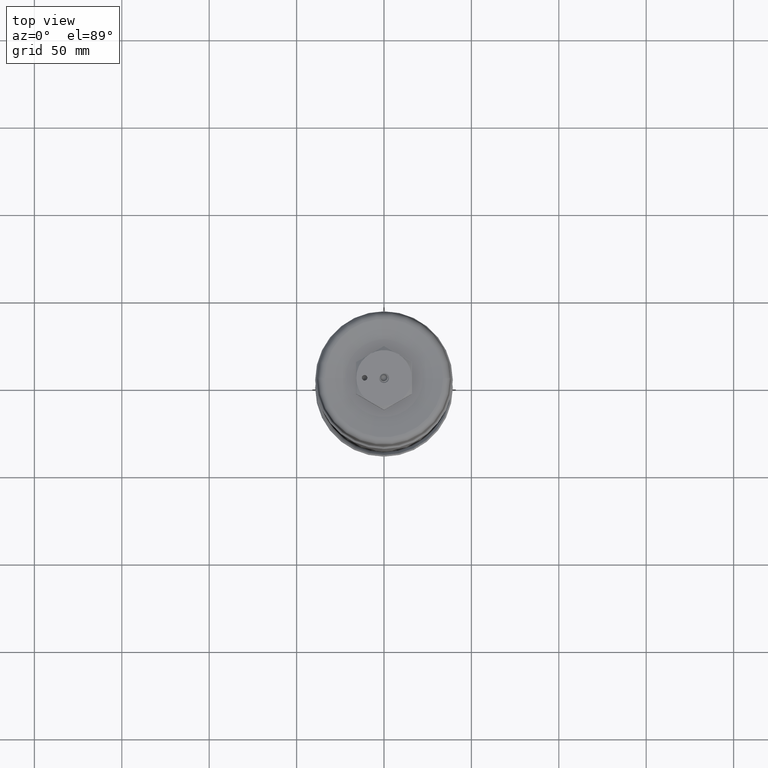
[diagram: clean part render]
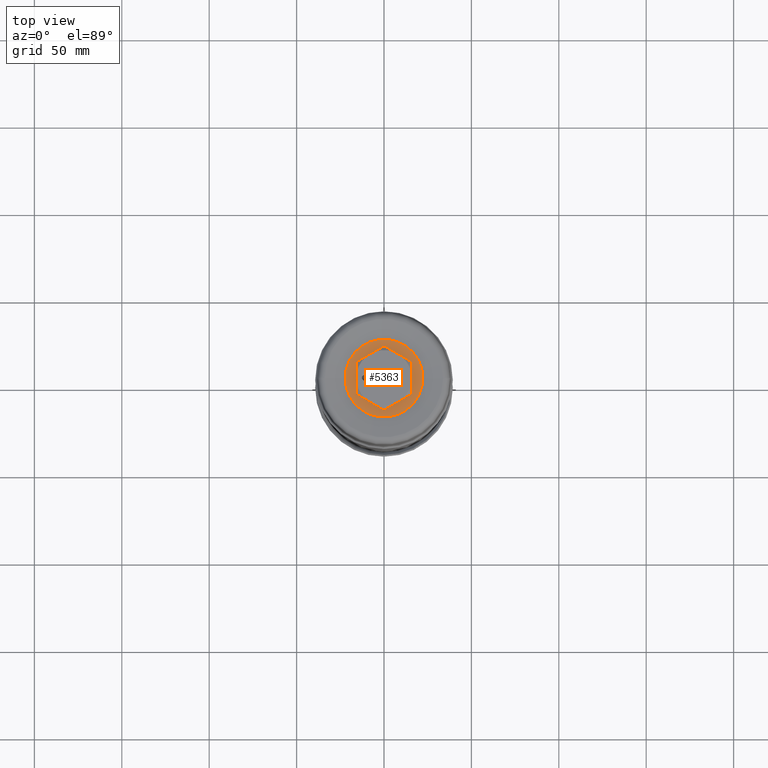
[diagram: same view with one face highlighted and labeled with its STEP entity id]
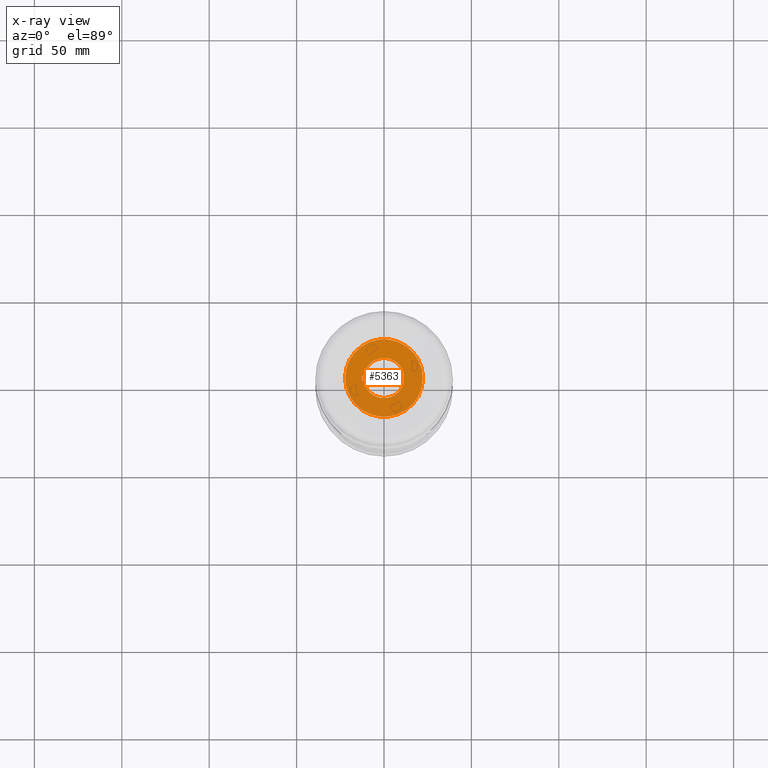
[diagram: x-ray of the same camera — body ghosted, the highlighted face saturated]
A machine part, top view. The second image highlights one B-rep face of the part: STEP entity #5363.
The next image is the same camera in x-ray: the body ghosted, the highlighted face saturated — about 0% of this face is hidden behind the body in this view.
In plain terms, the highlighted planar face has unit normal (0, -0, -1).
Its self-contained STEP definition (entity closure, byte-faithful):
#474 = ORIENTED_EDGE ( 'NONE', *, *, #10587, .T. ) ;
#1390 = EDGE_CURVE ( 'NONE', #4134, #18209, #12932, .T. ) ;
#1484 = CARTESIAN_POINT ( 'NONE',  ( 0.8750000000000268700, -4.857225732735862300E-017, 0.04150000000000377700 ) ) ;
#1608 = VERTEX_POINT ( 'NONE', #1484 ) ;
#1858 = CARTESIAN_POINT ( 'NONE',  ( -0.4487976598173250000, 0.06156021883058315800, 0.04149999999999889200 ) ) ;
#2191 = EDGE_LOOP ( 'NONE', ( #6588, #14756 ) ) ;
#2488 = CIRCLE ( 'NONE', #6957, 0.8750000000000005600 ) ;
#3825 = CARTESIAN_POINT ( 'NONE',  ( 2.628985851133196900E-014, -1.332752878654459700E-030, 0.04150000000000050900 ) ) ;
#4051 = VERTEX_POINT ( 'NONE', #15406 ) ;
#4134 = VERTEX_POINT ( 'NONE', #13165 ) ;
#4339 = EDGE_LOOP ( 'NONE', ( #474, #8561 ) ) ;
#4702 = AXIS2_PLACEMENT_3D ( 'NONE', #16638, #7980, #18117 ) ;
#5286 = DIRECTION ( 'NONE',  ( -1.000000000000000000, 5.551115123126545700E-017, -3.618341713462598500E-015 ) ) ;
#5363 = ADVANCED_FACE ( 'NONE', ( #13427, #5765 ), #8247, .F. ) ;
#5765 = FACE_BOUND ( 'NONE', #2191, .T. ) ;
#6588 = ORIENTED_EDGE ( 'NONE', *, *, #15678, .F. ) ;
#6712 = CARTESIAN_POINT ( 'NONE',  ( -0.0007207036880540014200, 4.000709142062304400E-020, 0.04150000000000050900 ) ) ;
#6900 = CIRCLE ( 'NONE', #12110, 0.4530000000000002400 ) ;
#6957 = AXIS2_PLACEMENT_3D ( 'NONE', #7219, #17374, #8702 ) ;
#7219 = CARTESIAN_POINT ( 'NONE',  ( 2.631738730065977700E-014, -1.334281033442048700E-030, 0.04150000000000061300 ) ) ;
#7980 = DIRECTION ( 'NONE',  ( 3.615959338223850300E-015, -1.390815354352320200E-030, -1.000000000000000000 ) ) ;
#8042 = DIRECTION ( 'NONE',  ( -3.615959338223850300E-015, 1.390815354352320200E-030, 1.000000000000000000 ) ) ;
#8189 = DIRECTION ( 'NONE',  ( -1.000000000000000000, 5.551115123126544400E-017, -3.615959338223832200E-015 ) ) ;
#8247 = PLANE ( 'NONE',  #15192 ) ;
#8561 = ORIENTED_EDGE ( 'NONE', *, *, #9284, .T. ) ;
#8702 = DIRECTION ( 'NONE',  ( 1.000000000000000000, -5.551115123126544400E-017, 3.619698591605146800E-015 ) ) ;
#9284 = EDGE_CURVE ( 'NONE', #4051, #1608, #12064, .T. ) ;
#10587 = EDGE_CURVE ( 'NONE', #1608, #4051, #2488, .T. ) ;
#12064 = CIRCLE ( 'NONE', #17983, 0.8750000000000005600 ) ;
#12110 = AXIS2_PLACEMENT_3D ( 'NONE', #3825, #13948, #5286 ) ;
#12932 = CIRCLE ( 'NONE', #4702, 0.06249999999999953500 ) ;
#13165 = CARTESIAN_POINT ( 'NONE',  ( -0.4487976598173250000, -0.06156021883058310900, 0.04149999999999889200 ) ) ;
#13427 = FACE_OUTER_BOUND ( 'NONE', #4339, .T. ) ;
#13948 = DIRECTION ( 'NONE',  ( -3.615959338223850300E-015, 1.390815354352320200E-030, 1.000000000000000000 ) ) ;
#14756 = ORIENTED_EDGE ( 'NONE', *, *, #1390, .T. ) ;
#15192 = AXIS2_PLACEMENT_3D ( 'NONE', #6712, #16835, #8189 ) ;
#15406 = CARTESIAN_POINT ( 'NONE',  ( -0.8749999999999735800, 1.963299247303080500E-016, 0.04149999999999744200 ) ) ;
#15678 = EDGE_CURVE ( 'NONE', #4134, #18209, #6900, .T. ) ;
#16638 = CARTESIAN_POINT ( 'NONE',  ( -0.4380000000000002200, 1.609344897677090500E-030, 0.04149999999999892700 ) ) ;
#16709 = CARTESIAN_POINT ( 'NONE',  ( 2.631738730065977700E-014, -1.334281033442048700E-030, 0.04150000000000061300 ) ) ;
#16835 = DIRECTION ( 'NONE',  ( 3.615959338223832200E-015, -1.390815354352319000E-030, -1.000000000000000000 ) ) ;
#17374 = DIRECTION ( 'NONE',  ( -3.615959338223850300E-015, 1.390815354352320200E-030, 1.000000000000000000 ) ) ;
#17983 = AXIS2_PLACEMENT_3D ( 'NONE', #16709, #8042, #18182 ) ;
#18117 = DIRECTION ( 'NONE',  ( -1.000000000000000000, 3.685459541579414500E-030, -3.551402391763568800E-015 ) ) ;
#18182 = DIRECTION ( 'NONE',  ( 1.000000000000000000, -5.551115123126544400E-017, 3.619698591605146800E-015 ) ) ;
#18209 = VERTEX_POINT ( 'NONE', #1858 ) ;